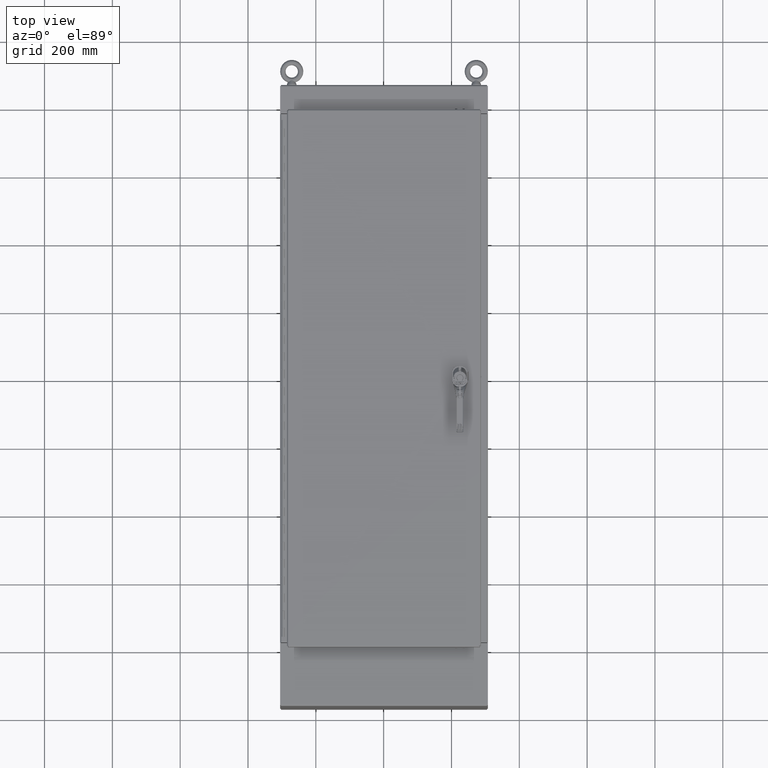
[diagram: clean part render]
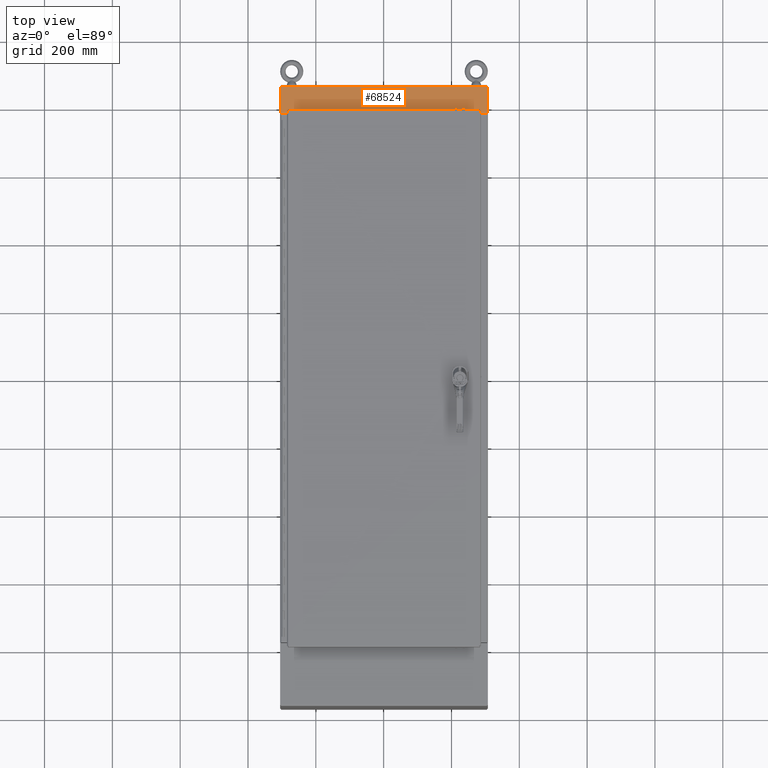
[diagram: same view with one face highlighted and labeled with its STEP entity id]
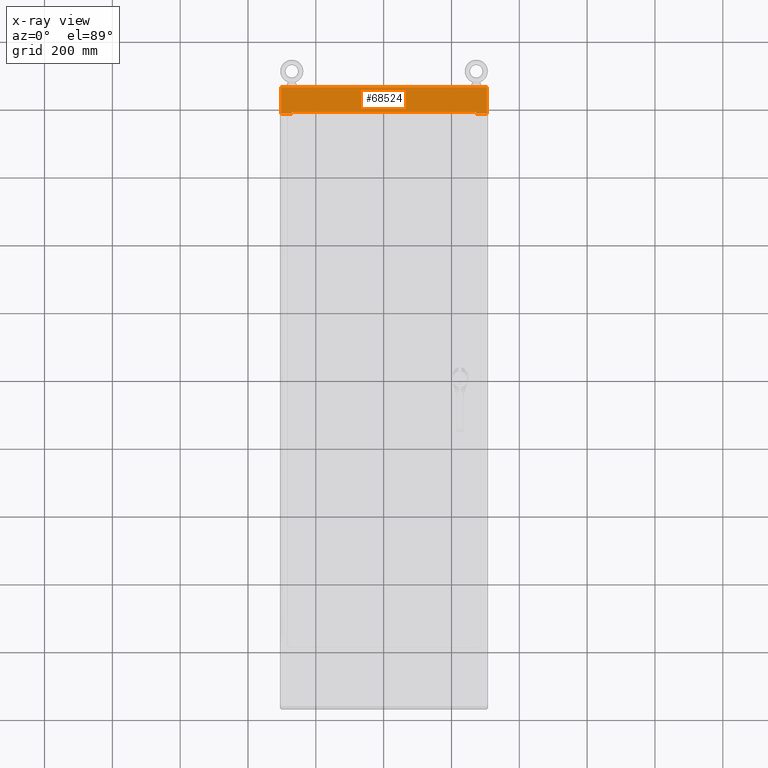
[diagram: x-ray of the same camera — body ghosted, the highlighted face saturated]
A machine part, top view. The second image highlights one B-rep face of the part: STEP entity #68524.
The next image is the same camera in x-ray: the body ghosted, the highlighted face saturated — about 0% of this face is hidden behind the body in this view.
In plain terms, the highlighted planar face has unit normal (0, 0, 1).
Its self-contained STEP definition (entity closure, byte-faithful):
#9315=PLANE('',#72373);
#10515=FACE_OUTER_BOUND('',#13475,.T.);
#13475=EDGE_LOOP('',(#51015,#51016,#51017,#51018,#51019,#51020,#51021,#51022,
#51023,#51024,#51025,#51026));
#20262=LINE('',#97217,#25428);
#20266=LINE('',#97226,#25432);
#20272=LINE('',#97239,#25438);
#20298=LINE('',#97289,#25464);
#20331=LINE('',#97378,#25497);
#20344=LINE('',#97404,#25510);
#20345=LINE('',#97406,#25511);
#20347=LINE('',#97410,#25513);
#20348=LINE('',#97413,#25514);
#20350=LINE('',#97416,#25516);
#20351=LINE('',#97419,#25517);
#20352=LINE('',#97420,#25518);
#25428=VECTOR('',#79141,0.393700787401575);
#25432=VECTOR('',#79147,0.393700787401575);
#25438=VECTOR('',#79157,0.179624999999999);
#25464=VECTOR('',#79193,0.393700787401575);
#25497=VECTOR('',#79290,0.393700787401575);
#25510=VECTOR('',#79319,0.393700787401575);
#25511=VECTOR('',#79322,0.393700787401575);
#25513=VECTOR('',#79326,0.393700787401575);
#25514=VECTOR('',#79329,0.393700787401575);
#25516=VECTOR('',#79333,0.393700787401575);
#25517=VECTOR('',#79336,0.393700787401575);
#25518=VECTOR('',#79337,0.393700787401575);
#30522=VERTEX_POINT('',#97214);
#30523=VERTEX_POINT('',#97216);
#30526=VERTEX_POINT('',#97223);
#30527=VERTEX_POINT('',#97225);
#30532=VERTEX_POINT('',#97238);
#30551=VERTEX_POINT('',#97288);
#30573=VERTEX_POINT('',#97363);
#30574=VERTEX_POINT('',#97367);
#30580=VERTEX_POINT('',#97402);
#30581=VERTEX_POINT('',#97408);
#30582=VERTEX_POINT('',#97412);
#30583=VERTEX_POINT('',#97418);
#39911=EDGE_CURVE('',#30523,#30522,#20262,.T.);
#39915=EDGE_CURVE('',#30527,#30526,#20266,.T.);
#39921=EDGE_CURVE('',#30523,#30532,#20272,.T.);
#39947=EDGE_CURVE('',#30551,#30527,#20298,.T.);
#39992=EDGE_CURVE('',#30573,#30574,#20331,.T.);
#40005=EDGE_CURVE('',#30574,#30580,#20344,.T.);
#40006=EDGE_CURVE('',#30580,#30551,#20345,.T.);
#40008=EDGE_CURVE('',#30522,#30581,#20347,.T.);
#40009=EDGE_CURVE('',#30582,#30573,#20348,.T.);
#40011=EDGE_CURVE('',#30581,#30582,#20350,.T.);
#40012=EDGE_CURVE('',#30583,#30526,#20351,.T.);
#40013=EDGE_CURVE('',#30583,#30532,#20352,.T.);
#51015=ORIENTED_EDGE('',*,*,#39911,.T.);
#51016=ORIENTED_EDGE('',*,*,#40008,.T.);
#51017=ORIENTED_EDGE('',*,*,#40011,.T.);
#51018=ORIENTED_EDGE('',*,*,#40009,.T.);
#51019=ORIENTED_EDGE('',*,*,#39992,.T.);
#51020=ORIENTED_EDGE('',*,*,#40005,.T.);
#51021=ORIENTED_EDGE('',*,*,#40006,.T.);
#51022=ORIENTED_EDGE('',*,*,#39947,.T.);
#51023=ORIENTED_EDGE('',*,*,#39915,.T.);
#51024=ORIENTED_EDGE('',*,*,#40012,.F.);
#51025=ORIENTED_EDGE('',*,*,#40013,.T.);
#51026=ORIENTED_EDGE('',*,*,#39921,.F.);
#68524=ADVANCED_FACE('',(#10515),#9315,.T.);
#72373=AXIS2_PLACEMENT_3D('',#97417,#79334,#79335);
#79141=DIRECTION('',(1.,-2.53026627769423E-16,1.68342601233409E-31));
#79147=DIRECTION('',(1.,-2.53026627769423E-16,1.68342601233409E-31));
#79157=DIRECTION('',(-4.57501033049237E-31,-1.09497182257616E-15,1.));
#79193=DIRECTION('',(0.,8.81330274985657E-15,-1.));
#79290=DIRECTION('',(1.,-2.53026627769424E-16,6.54365460938528E-17));
#79319=DIRECTION('',(0.,-8.81330274985657E-15,1.));
#79322=DIRECTION('',(1.,-2.53026627769423E-16,-2.55223489999581E-30));
#79326=DIRECTION('',(0.,-8.81330274985657E-15,1.));
#79329=DIRECTION('',(0.,8.81330274985657E-15,-1.));
#79333=DIRECTION('',(1.,-2.53026627769423E-16,-2.55223489999581E-30));
#79334=DIRECTION('center_axis',(-2.53026627769423E-16,-1.,-8.81330274985657E-15));
#79335=DIRECTION('ref_axis',(1.,-2.53026627769427E-16,4.0937171088735E-16));
#79336=DIRECTION('',(3.59917788007087E-30,8.82055185704388E-15,-1.));
#79337=DIRECTION('',(-1.,2.53026627769423E-16,-1.3790499132355E-30));
#97214=CARTESIAN_POINT('',(-10.6877,-12.0625,-3.21899999999979));
#97216=CARTESIAN_POINT('',(-11.9585,-12.0625,-3.21899999999979));
#97217=CARTESIAN_POINT('',(-5.34385,-12.0625,-3.21899999999979));
#97223=CARTESIAN_POINT('',(11.9585,-12.0625,-3.21899999999979));
#97225=CARTESIAN_POINT('',(10.6877,-12.0625,-3.21899999999979));
#97226=CARTESIAN_POINT('',(5.97925,-12.0625,-3.21899999999979));
#97238=CARTESIAN_POINT('',(-11.9585,-12.0625,-0.140625000000002));
#97239=CARTESIAN_POINT('',(-11.9585,-12.0625,0.423683580401064));
#97288=CARTESIAN_POINT('',(10.6877,-12.0625,-3.07305));
#97289=CARTESIAN_POINT('',(10.6877,-12.0625,-2.41786767744987));
#97363=CARTESIAN_POINT('',(-10.6875,-12.0625,-3.07325));
#97367=CARTESIAN_POINT('',(10.6875,-12.0625,-3.07325));
#97378=CARTESIAN_POINT('',(5.34375,-12.0625,-3.07325));
#97402=CARTESIAN_POINT('',(10.6875,-12.0625,-3.07305));
#97404=CARTESIAN_POINT('',(10.6875,-12.0625,-2.31889267744987));
#97406=CARTESIAN_POINT('',(5.34385,-12.0625,-3.07305));
#97408=CARTESIAN_POINT('',(-10.6877,-12.0625,-3.07305));
#97410=CARTESIAN_POINT('',(-10.6877,-12.0625,-2.31889267744987));
#97412=CARTESIAN_POINT('',(-10.6875,-12.0625,-3.07305));
#97413=CARTESIAN_POINT('',(-10.6875,-12.0625,-2.41786767744987));
#97416=CARTESIAN_POINT('',(-5.34375,-12.0625,-3.07305));
#97417=CARTESIAN_POINT('Origin',(1.64738355178256E-15,-12.0625,-1.56473535489973));
#97418=CARTESIAN_POINT('',(11.9585,-12.0625,-0.140625000000001));
#97419=CARTESIAN_POINT('',(11.9585,-12.0625,-0.140625000000001));
#97420=CARTESIAN_POINT('',(2.87676097283885E-15,-12.0625,-0.140625000000004));